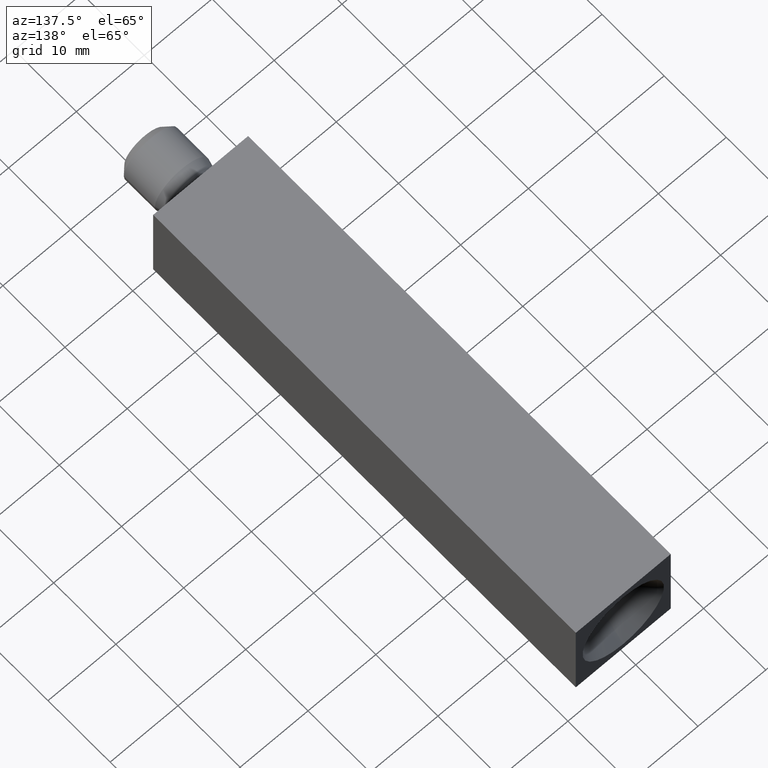
[diagram: clean part render]
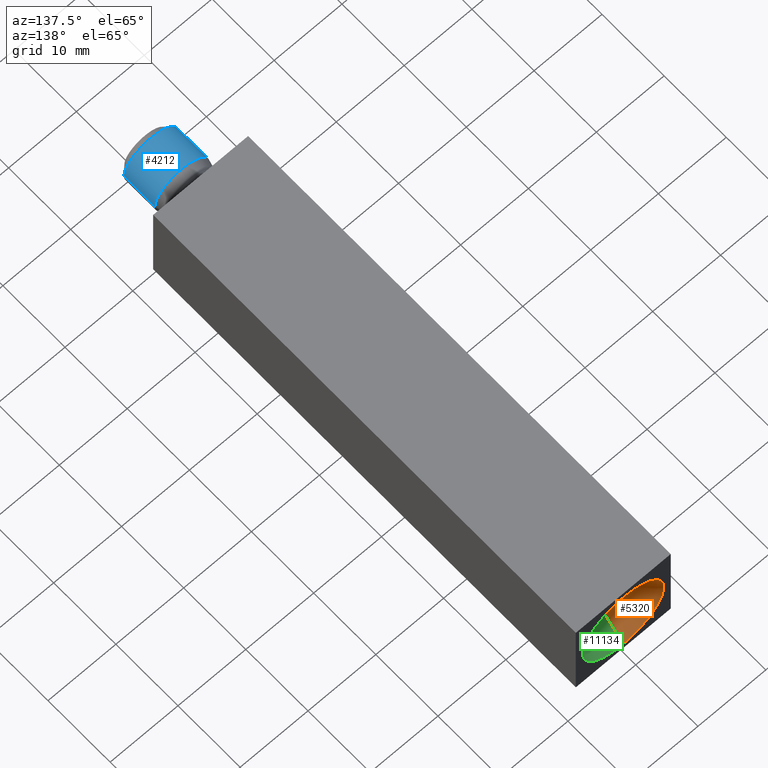
[diagram: same view with three faces highlighted in distinct colors, each labeled with its STEP entity id]
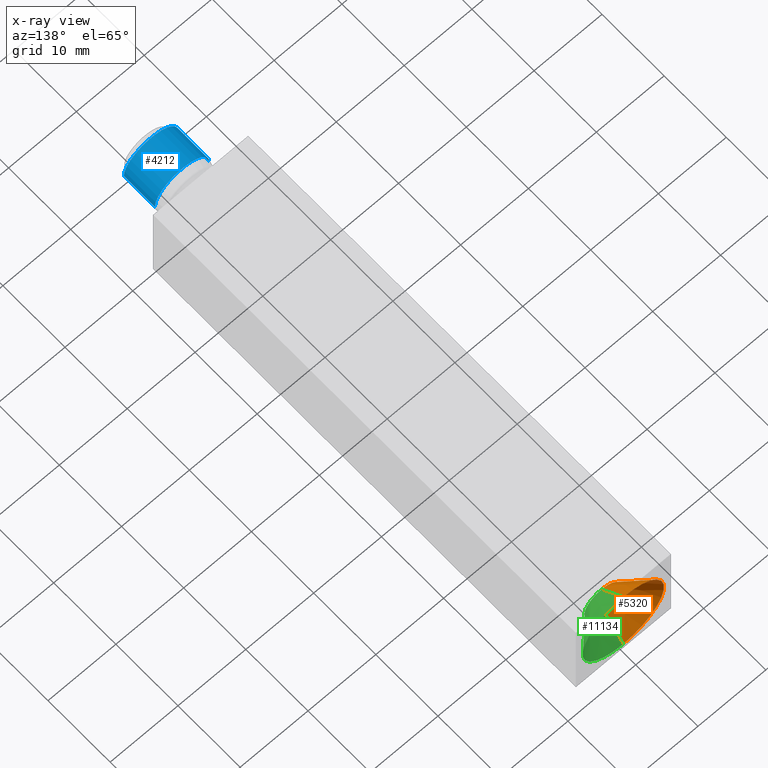
[diagram: x-ray of the same camera — body ghosted, the three highlighted faces saturated]
A machine part, auxiliary view with three faces highlighted in distinct colors.
The next image is the same camera in x-ray (body ghosted, the three faces saturated) — at least one of them is partly hidden behind the body in this view.
Their STEP definitions:

[orange] entity #5320 — the highlighted conical surface has half-angle 45 deg.
#62 = CONICAL_SURFACE ( 'NONE', #1762, 6.000000000000000000, 0.7853981633974482800 ) ;
#209 = CIRCLE ( 'NONE', #3847, 6.000000000000000000 ) ;
#480 = VECTOR ( 'NONE', #6160, 1000.000000000000000 ) ;
#547 = VERTEX_POINT ( 'NONE', #2833 ) ;
#1257 = CARTESIAN_POINT ( 'NONE',  ( -8.327598234201999500E-015, 68.00000000000000000, 6.000000000000000000 ) ) ;
#1411 = DIRECTION ( 'NONE',  ( -0.0000000000000000000, 1.000000000000000000, 1.654113398946095800E-033 ) ) ;
#1762 = AXIS2_PLACEMENT_3D ( 'NONE', #9870, #1411, #12017 ) ;
#2019 = VERTEX_POINT ( 'NONE', #10994 ) ;
#2271 = LINE ( 'NONE', #5657, #4678 ) ;
#2331 = VERTEX_POINT ( 'NONE', #4142 ) ;
#2602 = EDGE_CURVE ( 'NONE', #11168, #547, #2271, .T. ) ;
#2790 = CARTESIAN_POINT ( 'NONE',  ( -8.327598234201999500E-015, 68.00000000000000000, 9.641118096714358600E-032 ) ) ;
#2833 = CARTESIAN_POINT ( 'NONE',  ( -7.592810154713588700E-015, 68.00000000000000000, -6.000000000000000000 ) ) ;
#2886 = FACE_OUTER_BOUND ( 'NONE', #9303, .T. ) ;
#3481 = ORIENTED_EDGE ( 'NONE', *, *, #4180, .F. ) ;
#3847 = AXIS2_PLACEMENT_3D ( 'NONE', #2790, #6490, #8488 ) ;
#4142 = CARTESIAN_POINT ( 'NONE',  ( -8.327598234201999500E-015, 64.50000000000000000, 2.499999999999997300 ) ) ;
#4180 = EDGE_CURVE ( 'NONE', #2331, #2019, #10962, .T. ) ;
#4538 = DIRECTION ( 'NONE',  ( 0.0000000000000000000, 0.0000000000000000000, 1.000000000000000000 ) ) ;
#4678 = VECTOR ( 'NONE', #7685, 1000.000000000000000 ) ;
#4811 = EDGE_CURVE ( 'NONE', #11168, #2331, #5248, .T. ) ;
#5248 = CIRCLE ( 'NONE', #5456, 2.499999999999997300 ) ;
#5320 = ADVANCED_FACE ( 'NONE', ( #2886 ), #62, .F. ) ;
#5456 = AXIS2_PLACEMENT_3D ( 'NONE', #11082, #10290, #4538 ) ;
#5657 = CARTESIAN_POINT ( 'NONE',  ( -7.592810154713588700E-015, 68.00000000000000000, -6.000000000000000000 ) ) ;
#6160 = DIRECTION ( 'NONE',  ( 0.0000000000000000000, 0.7071067811865475700, 0.7071067811865474600 ) ) ;
#6490 = DIRECTION ( 'NONE',  ( -0.0000000000000000000, 1.000000000000000000, 1.654113398946095800E-033 ) ) ;
#7051 = EDGE_CURVE ( 'NONE', #547, #2019, #209, .T. ) ;
#7685 = DIRECTION ( 'NONE',  ( 8.659560562354931600E-017, 0.7071067811865475700, -0.7071067811865474600 ) ) ;
#8488 = DIRECTION ( 'NONE',  ( 0.0000000000000000000, 0.0000000000000000000, 1.000000000000000000 ) ) ;
#8636 = ORIENTED_EDGE ( 'NONE', *, *, #4811, .F. ) ;
#9303 = EDGE_LOOP ( 'NONE', ( #8636, #9827, #11794, #3481 ) ) ;
#9827 = ORIENTED_EDGE ( 'NONE', *, *, #2602, .T. ) ;
#9870 = CARTESIAN_POINT ( 'NONE',  ( -8.327598234201999500E-015, 68.00000000000000000, 9.641118096714358600E-032 ) ) ;
#10290 = DIRECTION ( 'NONE',  ( -0.0000000000000000000, 1.000000000000000000, 1.654113398946095800E-033 ) ) ;
#10962 = LINE ( 'NONE', #1257, #480 ) ;
#10994 = CARTESIAN_POINT ( 'NONE',  ( -8.327598234201999500E-015, 68.00000000000000000, 6.000000000000000000 ) ) ;
#11082 = CARTESIAN_POINT ( 'NONE',  ( -8.327598234201999500E-015, 64.50000000000000000, 9.062178407083225700E-032 ) ) ;
#11168 = VERTEX_POINT ( 'NONE', #12071 ) ;
#11794 = ORIENTED_EDGE ( 'NONE', *, *, #7051, .T. ) ;
#12017 = DIRECTION ( 'NONE',  ( 0.0000000000000000000, 0.0000000000000000000, 1.000000000000000000 ) ) ;
#12071 = CARTESIAN_POINT ( 'NONE',  ( -7.807123344564375200E-015, 64.50000000000000000, -2.499999999999997300 ) ) ;

[blue] entity #4212 — the highlighted cylindrical surface (partial cylindrical patch) has radius 4 mm, axis along (-0, 1, -0).
#405 = VERTEX_POINT ( 'NONE', #8244 ) ;
#407 = DIRECTION ( 'NONE',  ( -1.000000000000000000, 0.0000000000000000000, 0.0000000000000000000 ) ) ;
#1167 = EDGE_CURVE ( 'NONE', #6527, #8554, #8027, .T. ) ;
#1467 = CARTESIAN_POINT ( 'NONE',  ( 0.0000000000000000000, 0.0000000000000000000, 0.0000000000000000000 ) ) ;
#1733 = ORIENTED_EDGE ( 'NONE', *, *, #7921, .T. ) ;
#2024 = AXIS2_PLACEMENT_3D ( 'NONE', #5493, #4518, #6587 ) ;
#2176 = CARTESIAN_POINT ( 'NONE',  ( -4.000000000000005300, -4.898587196589418700E-016, 0.0000000000000000000 ) ) ;
#2188 = DIRECTION ( 'NONE',  ( -1.224646799147353000E-016, 1.000000000000000000, -0.0000000000000000000 ) ) ;
#3072 = EDGE_CURVE ( 'NONE', #405, #6527, #7858, .T. ) ;
#3376 = DIRECTION ( 'NONE',  ( -1.224646799147353000E-016, 1.000000000000000000, -0.0000000000000000000 ) ) ;
#4181 = DIRECTION ( 'NONE',  ( -1.224646799147353000E-016, 1.000000000000000000, -0.0000000000000000000 ) ) ;
#4212 = ADVANCED_FACE ( 'NONE', ( #7841 ), #4956, .T. ) ;
#4334 = VERTEX_POINT ( 'NONE', #11260 ) ;
#4518 = DIRECTION ( 'NONE',  ( -1.224646799147353000E-016, 1.000000000000000000, -0.0000000000000000000 ) ) ;
#4850 = CARTESIAN_POINT ( 'NONE',  ( 4.000000000000000000, -3.000000000000000000, 4.898587196589416800E-016 ) ) ;
#4956 = CYLINDRICAL_SURFACE ( 'NONE', #9482, 4.000000000000005300 ) ;
#5493 = CARTESIAN_POINT ( 'NONE',  ( 3.673940397442059900E-016, -3.000000000000000400, 0.0000000000000000000 ) ) ;
#5932 = CARTESIAN_POINT ( 'NONE',  ( 4.000000000000005300, 4.898587196589418700E-016, 4.898587196589419700E-016 ) ) ;
#6336 = AXIS2_PLACEMENT_3D ( 'NONE', #9091, #7245, #407 ) ;
#6405 = DIRECTION ( 'NONE',  ( -1.000000000000000000, -1.224646799147353000E-016, 0.0000000000000000000 ) ) ;
#6527 = VERTEX_POINT ( 'NONE', #11770 ) ;
#6587 = DIRECTION ( 'NONE',  ( -1.000000000000000000, -1.084202172485504400E-016, 0.0000000000000000000 ) ) ;
#7103 = CIRCLE ( 'NONE', #6336, 4.000000000000009800 ) ;
#7167 = ORIENTED_EDGE ( 'NONE', *, *, #1167, .F. ) ;
#7210 = ORIENTED_EDGE ( 'NONE', *, *, #3072, .F. ) ;
#7245 = DIRECTION ( 'NONE',  ( -1.224646799147353000E-016, 1.000000000000000000, -0.0000000000000000000 ) ) ;
#7841 = FACE_OUTER_BOUND ( 'NONE', #11928, .T. ) ;
#7858 = LINE ( 'NONE', #2176, #8460 ) ;
#7921 = EDGE_CURVE ( 'NONE', #4334, #8554, #11898, .T. ) ;
#8027 = CIRCLE ( 'NONE', #2024, 4.000000000000000000 ) ;
#8244 = CARTESIAN_POINT ( 'NONE',  ( -4.000000000000008000, -7.999999999999992900, 0.0000000000000000000 ) ) ;
#8329 = EDGE_CURVE ( 'NONE', #405, #4334, #7103, .T. ) ;
#8460 = VECTOR ( 'NONE', #4181, 1000.000000000000000 ) ;
#8554 = VERTEX_POINT ( 'NONE', #4850 ) ;
#9091 = CARTESIAN_POINT ( 'NONE',  ( 9.797174393178815800E-016, -7.999999999999992900, 0.0000000000000000000 ) ) ;
#9482 = AXIS2_PLACEMENT_3D ( 'NONE', #1467, #3376, #6405 ) ;
#11260 = CARTESIAN_POINT ( 'NONE',  ( 4.000000000000011500, -7.999999999999992900, 4.898587196589424700E-016 ) ) ;
#11770 = CARTESIAN_POINT ( 'NONE',  ( -4.000000000000000000, -3.000000000000000900, 0.0000000000000000000 ) ) ;
#11898 = LINE ( 'NONE', #5932, #12214 ) ;
#11928 = EDGE_LOOP ( 'NONE', ( #12414, #1733, #7167, #7210 ) ) ;
#12214 = VECTOR ( 'NONE', #2188, 1000.000000000000000 ) ;
#12414 = ORIENTED_EDGE ( 'NONE', *, *, #8329, .T. ) ;

[green] entity #11134 — the highlighted conical surface has half-angle 45 deg.
#480 = VECTOR ( 'NONE', #6160, 1000.000000000000000 ) ;
#547 = VERTEX_POINT ( 'NONE', #2833 ) ;
#1186 = EDGE_CURVE ( 'NONE', #2331, #11168, #5882, .T. ) ;
#1257 = CARTESIAN_POINT ( 'NONE',  ( -8.327598234201999500E-015, 68.00000000000000000, 6.000000000000000000 ) ) ;
#1569 = DIRECTION ( 'NONE',  ( 0.0000000000000000000, 0.0000000000000000000, 1.000000000000000000 ) ) ;
#2019 = VERTEX_POINT ( 'NONE', #10994 ) ;
#2226 = EDGE_LOOP ( 'NONE', ( #3510, #8274, #3668, #6695 ) ) ;
#2271 = LINE ( 'NONE', #5657, #4678 ) ;
#2331 = VERTEX_POINT ( 'NONE', #4142 ) ;
#2602 = EDGE_CURVE ( 'NONE', #11168, #547, #2271, .T. ) ;
#2716 = DIRECTION ( 'NONE',  ( -0.0000000000000000000, 1.000000000000000000, 1.654113398946095800E-033 ) ) ;
#2833 = CARTESIAN_POINT ( 'NONE',  ( -7.592810154713588700E-015, 68.00000000000000000, -6.000000000000000000 ) ) ;
#3510 = ORIENTED_EDGE ( 'NONE', *, *, #2602, .F. ) ;
#3587 = CARTESIAN_POINT ( 'NONE',  ( -8.327598234201999500E-015, 64.50000000000000000, 9.062178407083225700E-032 ) ) ;
#3668 = ORIENTED_EDGE ( 'NONE', *, *, #4180, .T. ) ;
#4142 = CARTESIAN_POINT ( 'NONE',  ( -8.327598234201999500E-015, 64.50000000000000000, 2.499999999999997300 ) ) ;
#4180 = EDGE_CURVE ( 'NONE', #2331, #2019, #10962, .T. ) ;
#4563 = DIRECTION ( 'NONE',  ( 0.0000000000000000000, 0.0000000000000000000, 1.000000000000000000 ) ) ;
#4678 = VECTOR ( 'NONE', #7685, 1000.000000000000000 ) ;
#4845 = EDGE_CURVE ( 'NONE', #2019, #547, #10813, .T. ) ;
#5657 = CARTESIAN_POINT ( 'NONE',  ( -7.592810154713588700E-015, 68.00000000000000000, -6.000000000000000000 ) ) ;
#5882 = CIRCLE ( 'NONE', #9736, 2.499999999999997300 ) ;
#6160 = DIRECTION ( 'NONE',  ( 0.0000000000000000000, 0.7071067811865475700, 0.7071067811865474600 ) ) ;
#6245 = DIRECTION ( 'NONE',  ( 0.0000000000000000000, 0.0000000000000000000, 1.000000000000000000 ) ) ;
#6542 = AXIS2_PLACEMENT_3D ( 'NONE', #10094, #11990, #6245 ) ;
#6695 = ORIENTED_EDGE ( 'NONE', *, *, #4845, .T. ) ;
#7685 = DIRECTION ( 'NONE',  ( 8.659560562354931600E-017, 0.7071067811865475700, -0.7071067811865474600 ) ) ;
#8262 = CARTESIAN_POINT ( 'NONE',  ( -8.327598234201999500E-015, 68.00000000000000000, 9.641118096714358600E-032 ) ) ;
#8274 = ORIENTED_EDGE ( 'NONE', *, *, #1186, .F. ) ;
#9330 = CONICAL_SURFACE ( 'NONE', #6542, 6.000000000000000000, 0.7853981633974482800 ) ;
#9715 = AXIS2_PLACEMENT_3D ( 'NONE', #8262, #12180, #1569 ) ;
#9736 = AXIS2_PLACEMENT_3D ( 'NONE', #3587, #2716, #4563 ) ;
#10094 = CARTESIAN_POINT ( 'NONE',  ( -8.327598234201999500E-015, 68.00000000000000000, 9.641118096714358600E-032 ) ) ;
#10813 = CIRCLE ( 'NONE', #9715, 6.000000000000000000 ) ;
#10817 = FACE_OUTER_BOUND ( 'NONE', #2226, .T. ) ;
#10962 = LINE ( 'NONE', #1257, #480 ) ;
#10994 = CARTESIAN_POINT ( 'NONE',  ( -8.327598234201999500E-015, 68.00000000000000000, 6.000000000000000000 ) ) ;
#11134 = ADVANCED_FACE ( 'NONE', ( #10817 ), #9330, .F. ) ;
#11168 = VERTEX_POINT ( 'NONE', #12071 ) ;
#11990 = DIRECTION ( 'NONE',  ( -0.0000000000000000000, 1.000000000000000000, 1.654113398946095800E-033 ) ) ;
#12071 = CARTESIAN_POINT ( 'NONE',  ( -7.807123344564375200E-015, 64.50000000000000000, -2.499999999999997300 ) ) ;
#12180 = DIRECTION ( 'NONE',  ( -0.0000000000000000000, 1.000000000000000000, 1.654113398946095800E-033 ) ) ;